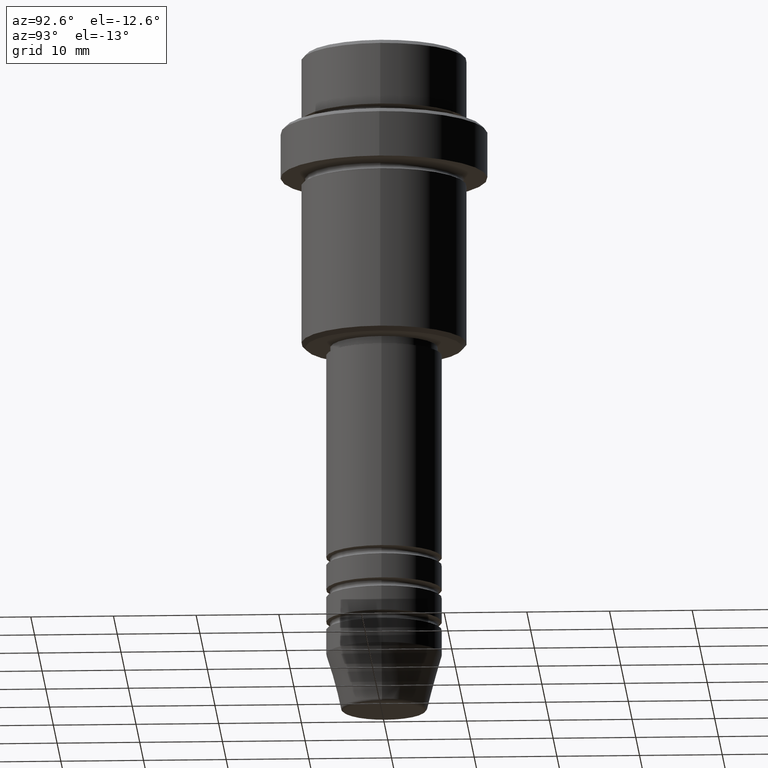
[diagram: clean part render]
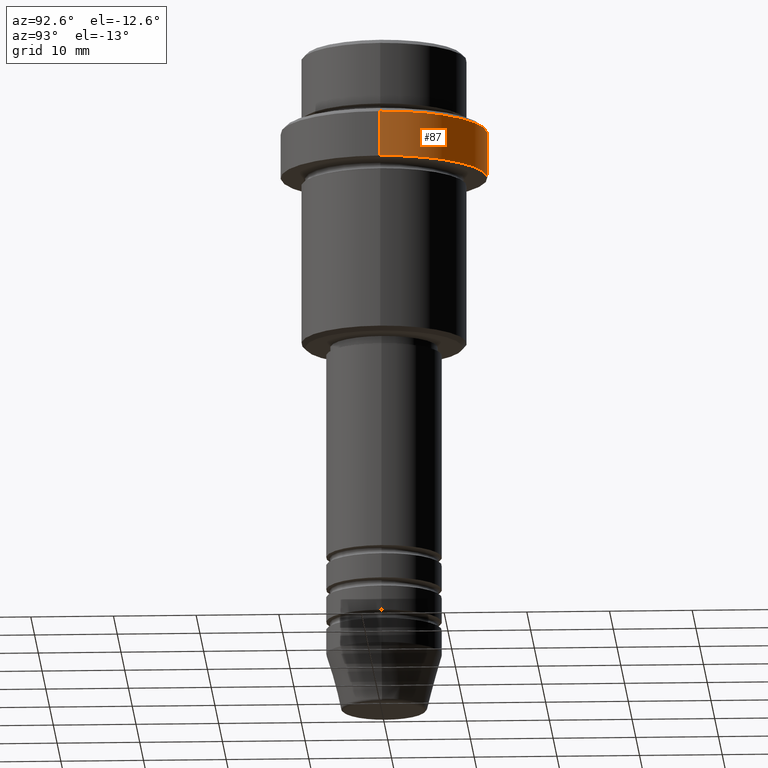
[diagram: same view with one face highlighted and labeled with its STEP entity id]
A machine part, auxiliary view. The second image highlights one B-rep face of the part: STEP entity #87.
In plain terms, the highlighted cylindrical surface (partial cylindrical patch) has radius 12.5 mm, axis along (-0, -0, 1).
Its self-contained STEP definition (entity closure, byte-faithful):
#25 = EDGE_CURVE ( 'NONE', #290, #1162, #335, .T. ) ;
#63 = DIRECTION ( 'NONE',  ( 1.000000000000000000, 0.000000000000000000, 0.000000000000000000 ) ) ;
#87 = ADVANCED_FACE ( 'NONE', ( #872 ), #1310, .T. ) ;
#103 = CIRCLE ( 'NONE', #920, 12.50000000000000000 ) ;
#116 = EDGE_LOOP ( 'NONE', ( #279, #492, #853, #523 ) ) ;
#124 = DIRECTION ( 'NONE',  ( -0.000000000000000000, -0.000000000000000000, 1.000000000000000000 ) ) ;
#141 = CARTESIAN_POINT ( 'NONE',  ( 0.000000000000000000, 0.000000000000000000, -9.500000000000005329 ) ) ;
#169 = CARTESIAN_POINT ( 'NONE',  ( 0.000000000000000000, 0.000000000000000000, -15.00000000000000000 ) ) ;
#177 = CARTESIAN_POINT ( 'NONE',  ( -12.50000000000000000, 1.530808498934191521E-15, -15.00000000000000000 ) ) ;
#279 = ORIENTED_EDGE ( 'NONE', *, *, #1251, .T. ) ;
#290 = VERTEX_POINT ( 'NONE', #574 ) ;
#326 = DIRECTION ( 'NONE',  ( -0.000000000000000000, -0.000000000000000000, 1.000000000000000000 ) ) ;
#335 = LINE ( 'NONE', #1400, #1121 ) ;
#354 = DIRECTION ( 'NONE',  ( 0.000000000000000000, 0.000000000000000000, -1.000000000000000000 ) ) ;
#357 = EDGE_CURVE ( 'NONE', #1029, #1162, #103, .T. ) ;
#484 = CARTESIAN_POINT ( 'NONE',  ( 12.50000000000000000, 0.000000000000000000, -9.500000000000005329 ) ) ;
#492 = ORIENTED_EDGE ( 'NONE', *, *, #1052, .T. ) ;
#522 = VERTEX_POINT ( 'NONE', #177 ) ;
#523 = ORIENTED_EDGE ( 'NONE', *, *, #25, .F. ) ;
#568 = DIRECTION ( 'NONE',  ( 1.000000000000000000, 0.000000000000000000, 0.000000000000000000 ) ) ;
#574 = CARTESIAN_POINT ( 'NONE',  ( 12.50000000000000000, 0.000000000000000000, -15.00000000000000000 ) ) ;
#602 = DIRECTION ( 'NONE',  ( -0.000000000000000000, -0.000000000000000000, 1.000000000000000000 ) ) ;
#657 = DIRECTION ( 'NONE',  ( 1.000000000000000000, 0.000000000000000000, 0.000000000000000000 ) ) ;
#766 = DIRECTION ( 'NONE',  ( -0.000000000000000000, -0.000000000000000000, 1.000000000000000000 ) ) ;
#773 = CARTESIAN_POINT ( 'NONE',  ( 0.000000000000000000, 0.000000000000000000, 0.000000000000000000 ) ) ;
#853 = ORIENTED_EDGE ( 'NONE', *, *, #357, .T. ) ;
#872 = FACE_OUTER_BOUND ( 'NONE', #116, .T. ) ;
#879 = CIRCLE ( 'NONE', #1008, 12.50000000000000000 ) ;
#892 = LINE ( 'NONE', #1331, #1381 ) ;
#920 = AXIS2_PLACEMENT_3D ( 'NONE', #141, #354, #568 ) ;
#997 = CARTESIAN_POINT ( 'NONE',  ( -12.50000000000000000, 1.530808498934191521E-15, -9.500000000000005329 ) ) ;
#1008 = AXIS2_PLACEMENT_3D ( 'NONE', #169, #602, #63 ) ;
#1029 = VERTEX_POINT ( 'NONE', #997 ) ;
#1052 = EDGE_CURVE ( 'NONE', #522, #1029, #892, .T. ) ;
#1055 = AXIS2_PLACEMENT_3D ( 'NONE', #773, #326, #657 ) ;
#1121 = VECTOR ( 'NONE', #766, 1000.000000000000000 ) ;
#1162 = VERTEX_POINT ( 'NONE', #484 ) ;
#1251 = EDGE_CURVE ( 'NONE', #290, #522, #879, .T. ) ;
#1310 = CYLINDRICAL_SURFACE ( 'NONE', #1055, 12.50000000000000000 ) ;
#1331 = CARTESIAN_POINT ( 'NONE',  ( -12.50000000000000000, 1.530808498934191521E-15, 0.000000000000000000 ) ) ;
#1381 = VECTOR ( 'NONE', #124, 1000.000000000000000 ) ;
#1400 = CARTESIAN_POINT ( 'NONE',  ( 12.50000000000000000, 0.000000000000000000, 0.000000000000000000 ) ) ;